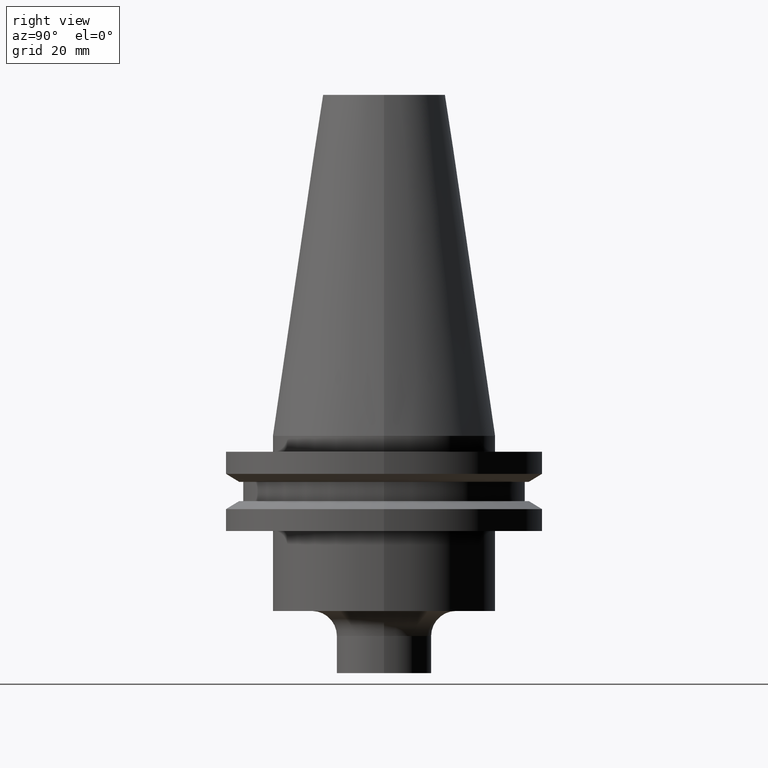
[diagram: clean part render]
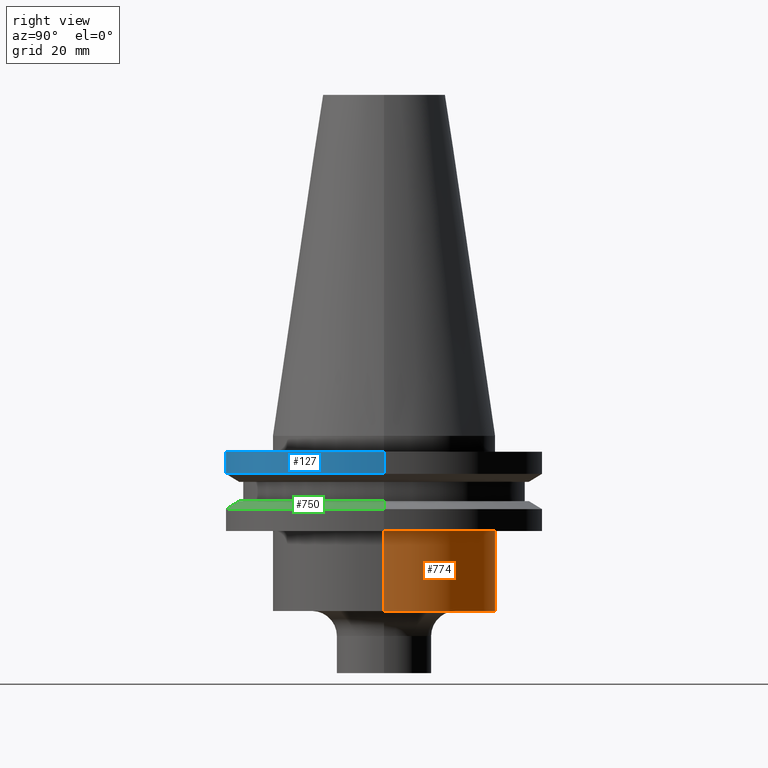
[diagram: same view with three faces highlighted in distinct colors, each labeled with its STEP entity id]
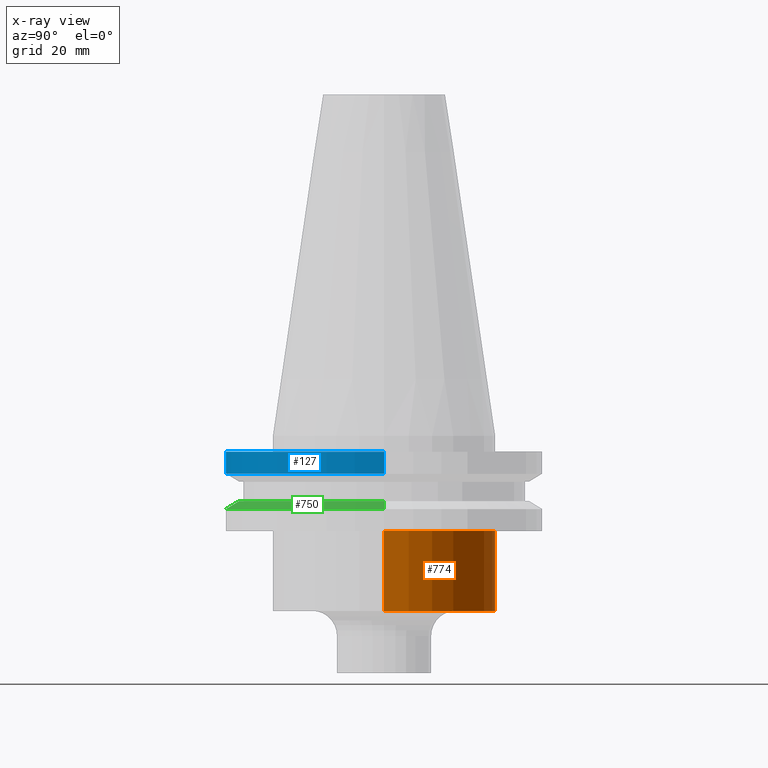
[diagram: x-ray of the same camera — body ghosted, the three highlighted faces saturated]
A machine part, right view with three faces highlighted in distinct colors.
The next image is the same camera in x-ray (body ghosted, the three faces saturated) — at least one of them is partly hidden behind the body in this view.
Their STEP definitions:

[orange] entity #774 — the highlighted cylindrical surface (partial cylindrical patch) has radius 22.225 mm, axis along (-0, -0, 1).
#21 = CARTESIAN_POINT ( 'NONE',  ( -22.22500000000000142, 2.721777511104992849E-15, -35.04999999999999716 ) ) ;
#22 = CYLINDRICAL_SURFACE ( 'NONE', #695, 22.22500000000000142 ) ;
#33 = DIRECTION ( 'NONE',  ( 1.000000000000000000, 0.000000000000000000, 0.000000000000000000 ) ) ;
#46 = ORIENTED_EDGE ( 'NONE', *, *, #731, .T. ) ;
#97 = DIRECTION ( 'NONE',  ( 1.000000000000000000, 0.000000000000000000, 0.000000000000000000 ) ) ;
#130 = VERTEX_POINT ( 'NONE', #462 ) ;
#173 = VERTEX_POINT ( 'NONE', #21 ) ;
#186 = CARTESIAN_POINT ( 'NONE',  ( 22.22500000000000142, 0.000000000000000000, 68.25000000000000000 ) ) ;
#216 = CARTESIAN_POINT ( 'NONE',  ( 0.000000000000000000, 0.000000000000000000, -19.04999999999999716 ) ) ;
#219 = VERTEX_POINT ( 'NONE', #317 ) ;
#223 = DIRECTION ( 'NONE',  ( 1.000000000000000000, 0.000000000000000000, 0.000000000000000000 ) ) ;
#252 = DIRECTION ( 'NONE',  ( -0.000000000000000000, -0.000000000000000000, 1.000000000000000000 ) ) ;
#273 = DIRECTION ( 'NONE',  ( -0.000000000000000000, -0.000000000000000000, 1.000000000000000000 ) ) ;
#292 = VECTOR ( 'NONE', #625, 1000.000000000000000 ) ;
#317 = CARTESIAN_POINT ( 'NONE',  ( 22.22500000000000142, 0.000000000000000000, -19.04999999999999716 ) ) ;
#320 = DIRECTION ( 'NONE',  ( -0.000000000000000000, -0.000000000000000000, 1.000000000000000000 ) ) ;
#324 = AXIS2_PLACEMENT_3D ( 'NONE', #216, #273, #223 ) ;
#325 = AXIS2_PLACEMENT_3D ( 'NONE', #513, #320, #97 ) ;
#327 = FACE_OUTER_BOUND ( 'NONE', #338, .T. ) ;
#338 = EDGE_LOOP ( 'NONE', ( #46, #549, #340, #694 ) ) ;
#340 = ORIENTED_EDGE ( 'NONE', *, *, #405, .F. ) ;
#345 = VERTEX_POINT ( 'NONE', #690 ) ;
#367 = CIRCLE ( 'NONE', #325, 22.22500000000000142 ) ;
#405 = EDGE_CURVE ( 'NONE', #219, #345, #670, .T. ) ;
#462 = CARTESIAN_POINT ( 'NONE',  ( 22.22500000000000142, 0.000000000000000000, -35.04999999999999716 ) ) ;
#479 = LINE ( 'NONE', #186, #292 ) ;
#513 = CARTESIAN_POINT ( 'NONE',  ( 0.000000000000000000, 0.000000000000000000, -35.04999999999999716 ) ) ;
#546 = DIRECTION ( 'NONE',  ( -0.000000000000000000, -0.000000000000000000, 1.000000000000000000 ) ) ;
#549 = ORIENTED_EDGE ( 'NONE', *, *, #564, .T. ) ;
#564 = EDGE_CURVE ( 'NONE', #173, #345, #724, .T. ) ;
#616 = VECTOR ( 'NONE', #546, 1000.000000000000000 ) ;
#625 = DIRECTION ( 'NONE',  ( -0.000000000000000000, -0.000000000000000000, 1.000000000000000000 ) ) ;
#638 = EDGE_CURVE ( 'NONE', #130, #219, #479, .T. ) ;
#670 = CIRCLE ( 'NONE', #324, 22.22500000000000142 ) ;
#690 = CARTESIAN_POINT ( 'NONE',  ( -22.22500000000000142, 2.721777511104992849E-15, -19.04999999999999716 ) ) ;
#694 = ORIENTED_EDGE ( 'NONE', *, *, #638, .F. ) ;
#695 = AXIS2_PLACEMENT_3D ( 'NONE', #746, #252, #33 ) ;
#719 = CARTESIAN_POINT ( 'NONE',  ( -22.22500000000000142, 2.721777511104992849E-15, 68.25000000000000000 ) ) ;
#724 = LINE ( 'NONE', #719, #616 ) ;
#731 = EDGE_CURVE ( 'NONE', #130, #173, #367, .T. ) ;
#746 = CARTESIAN_POINT ( 'NONE',  ( 0.000000000000000000, 0.000000000000000000, 68.25000000000000000 ) ) ;
#774 = ADVANCED_FACE ( 'NONE', ( #327 ), #22, .T. ) ;

[blue] entity #127 — the highlighted cylindrical surface (partial cylindrical patch) has radius 31.75 mm, axis along (-0, -0, 1).
#7 = CARTESIAN_POINT ( 'NONE',  ( 31.75000000000000000, 0.000000000000000000, -7.605276606597335842 ) ) ;
#17 = CARTESIAN_POINT ( 'NONE',  ( -31.75000000000000000, 3.888253587292846476E-15, -7.605276606597335842 ) ) ;
#24 = VECTOR ( 'NONE', #142, 1000.000000000000000 ) ;
#31 = ORIENTED_EDGE ( 'NONE', *, *, #192, .F. ) ;
#59 = VERTEX_POINT ( 'NONE', #586 ) ;
#83 = DIRECTION ( 'NONE',  ( 1.000000000000000000, 0.000000000000000000, 0.000000000000000000 ) ) ;
#87 = DIRECTION ( 'NONE',  ( 1.000000000000000000, 0.000000000000000000, 0.000000000000000000 ) ) ;
#100 = FACE_OUTER_BOUND ( 'NONE', #114, .T. ) ;
#111 = VERTEX_POINT ( 'NONE', #516 ) ;
#114 = EDGE_LOOP ( 'NONE', ( #487, #764, #302, #31 ) ) ;
#127 = ADVANCED_FACE ( 'NONE', ( #100 ), #337, .T. ) ;
#132 = VECTOR ( 'NONE', #577, 1000.000000000000000 ) ;
#142 = DIRECTION ( 'NONE',  ( -0.000000000000000000, -0.000000000000000000, 1.000000000000000000 ) ) ;
#184 = AXIS2_PLACEMENT_3D ( 'NONE', #580, #224, #218 ) ;
#192 = EDGE_CURVE ( 'NONE', #59, #111, #432, .T. ) ;
#218 = DIRECTION ( 'NONE',  ( 1.000000000000000000, 0.000000000000000000, 0.000000000000000000 ) ) ;
#224 = DIRECTION ( 'NONE',  ( -0.000000000000000000, -0.000000000000000000, 1.000000000000000000 ) ) ;
#239 = VERTEX_POINT ( 'NONE', #17 ) ;
#280 = CARTESIAN_POINT ( 'NONE',  ( 0.000000000000000000, 0.000000000000000000, -7.605276606597335842 ) ) ;
#298 = EDGE_CURVE ( 'NONE', #239, #628, #556, .T. ) ;
#302 = ORIENTED_EDGE ( 'NONE', *, *, #737, .T. ) ;
#337 = CYLINDRICAL_SURFACE ( 'NONE', #184, 31.75000000000000000 ) ;
#383 = DIRECTION ( 'NONE',  ( -0.000000000000000000, -0.000000000000000000, 1.000000000000000000 ) ) ;
#418 = EDGE_CURVE ( 'NONE', #239, #59, #452, .T. ) ;
#432 = CIRCLE ( 'NONE', #743, 31.75000000000000000 ) ;
#452 = LINE ( 'NONE', #621, #24 ) ;
#487 = ORIENTED_EDGE ( 'NONE', *, *, #418, .F. ) ;
#516 = CARTESIAN_POINT ( 'NONE',  ( 31.75000000000000000, 0.000000000000000000, -3.174999999999997158 ) ) ;
#526 = CARTESIAN_POINT ( 'NONE',  ( 31.75000000000000000, 0.000000000000000000, 68.25000000000000000 ) ) ;
#556 = CIRCLE ( 'NONE', #732, 31.75000000000000000 ) ;
#558 = CARTESIAN_POINT ( 'NONE',  ( 0.000000000000000000, 0.000000000000000000, -3.174999999999997158 ) ) ;
#577 = DIRECTION ( 'NONE',  ( -0.000000000000000000, -0.000000000000000000, 1.000000000000000000 ) ) ;
#580 = CARTESIAN_POINT ( 'NONE',  ( 0.000000000000000000, 0.000000000000000000, 68.25000000000000000 ) ) ;
#586 = CARTESIAN_POINT ( 'NONE',  ( -31.75000000000000000, 3.888253587292846476E-15, -3.174999999999997158 ) ) ;
#621 = CARTESIAN_POINT ( 'NONE',  ( -31.75000000000000000, 3.888253587292846476E-15, 68.25000000000000000 ) ) ;
#628 = VERTEX_POINT ( 'NONE', #7 ) ;
#682 = LINE ( 'NONE', #526, #132 ) ;
#732 = AXIS2_PLACEMENT_3D ( 'NONE', #280, #383, #87 ) ;
#736 = DIRECTION ( 'NONE',  ( -0.000000000000000000, -0.000000000000000000, 1.000000000000000000 ) ) ;
#737 = EDGE_CURVE ( 'NONE', #628, #111, #682, .T. ) ;
#743 = AXIS2_PLACEMENT_3D ( 'NONE', #558, #736, #83 ) ;
#764 = ORIENTED_EDGE ( 'NONE', *, *, #298, .T. ) ;

[green] entity #750 — the highlighted conical surface has half-angle 60 deg.
#1 = VERTEX_POINT ( 'NONE', #56 ) ;
#41 = DIRECTION ( 'NONE',  ( -1.000000000000000000, 0.000000000000000000, 0.000000000000000000 ) ) ;
#51 = CIRCLE ( 'NONE', #653, 28.97919780457008088 ) ;
#56 = CARTESIAN_POINT ( 'NONE',  ( -28.97919780457008088, 0.000000000000000000, -13.05499999999999794 ) ) ;
#105 = CARTESIAN_POINT ( 'NONE',  ( -31.75000000000000000, 0.000000000000000000, -14.65472339340266572 ) ) ;
#110 = EDGE_CURVE ( 'NONE', #448, #581, #268, .T. ) ;
#115 = VECTOR ( 'NONE', #689, 1000.000000000000000 ) ;
#135 = CARTESIAN_POINT ( 'NONE',  ( -31.75000000000000000, 3.888253587292846476E-15, -14.65472339340266572 ) ) ;
#169 = CARTESIAN_POINT ( 'NONE',  ( 31.75000000000000000, 3.888253587292846476E-15, -14.65472339340266572 ) ) ;
#170 = CIRCLE ( 'NONE', #608, 31.75000000000000000 ) ;
#180 = CARTESIAN_POINT ( 'NONE',  ( 31.75000000000000000, 0.000000000000000000, -14.65472339340266572 ) ) ;
#191 = DIRECTION ( 'NONE',  ( 1.000000000000000000, 0.000000000000000000, 0.000000000000000000 ) ) ;
#197 = CARTESIAN_POINT ( 'NONE',  ( 0.000000000000000000, 0.000000000000000000, -14.65472339340266572 ) ) ;
#226 = ORIENTED_EDGE ( 'NONE', *, *, #238, .F. ) ;
#238 = EDGE_CURVE ( 'NONE', #1, #448, #51, .T. ) ;
#257 = VERTEX_POINT ( 'NONE', #135 ) ;
#268 = LINE ( 'NONE', #169, #411 ) ;
#318 = CARTESIAN_POINT ( 'NONE',  ( 28.97919780457008088, 3.718590885307660666E-15, -13.05499999999999794 ) ) ;
#334 = CARTESIAN_POINT ( 'NONE',  ( 0.000000000000000000, 0.000000000000000000, -14.65472339340266572 ) ) ;
#389 = LINE ( 'NONE', #105, #115 ) ;
#396 = DIRECTION ( 'NONE',  ( 1.000000000000000000, 0.000000000000000000, 0.000000000000000000 ) ) ;
#402 = DIRECTION ( 'NONE',  ( 0.000000000000000000, 0.000000000000000000, -1.000000000000000000 ) ) ;
#404 = DIRECTION ( 'NONE',  ( 0.8660254037844387076, 1.060575238724906915E-16, -0.4999999999999998890 ) ) ;
#411 = VECTOR ( 'NONE', #404, 1000.000000000000000 ) ;
#436 = AXIS2_PLACEMENT_3D ( 'NONE', #334, #402, #41 ) ;
#448 = VERTEX_POINT ( 'NONE', #318 ) ;
#474 = EDGE_LOOP ( 'NONE', ( #480, #226, #642, #715 ) ) ;
#480 = ORIENTED_EDGE ( 'NONE', *, *, #110, .F. ) ;
#560 = DIRECTION ( 'NONE',  ( -0.000000000000000000, -0.000000000000000000, 1.000000000000000000 ) ) ;
#581 = VERTEX_POINT ( 'NONE', #180 ) ;
#608 = AXIS2_PLACEMENT_3D ( 'NONE', #197, #705, #396 ) ;
#642 = ORIENTED_EDGE ( 'NONE', *, *, #713, .T. ) ;
#653 = AXIS2_PLACEMENT_3D ( 'NONE', #739, #560, #191 ) ;
#689 = DIRECTION ( 'NONE',  ( -0.8660254037844387076, 0.000000000000000000, -0.4999999999999998890 ) ) ;
#705 = DIRECTION ( 'NONE',  ( -0.000000000000000000, -0.000000000000000000, 1.000000000000000000 ) ) ;
#712 = EDGE_CURVE ( 'NONE', #257, #581, #170, .T. ) ;
#713 = EDGE_CURVE ( 'NONE', #1, #257, #389, .T. ) ;
#715 = ORIENTED_EDGE ( 'NONE', *, *, #712, .T. ) ;
#739 = CARTESIAN_POINT ( 'NONE',  ( 0.000000000000000000, 0.000000000000000000, -13.05499999999999794 ) ) ;
#740 = CONICAL_SURFACE ( 'NONE', #436, 31.75000000000000000, 1.047197551196597853 ) ;
#750 = ADVANCED_FACE ( 'NONE', ( #767 ), #740, .T. ) ;
#767 = FACE_OUTER_BOUND ( 'NONE', #474, .T. ) ;